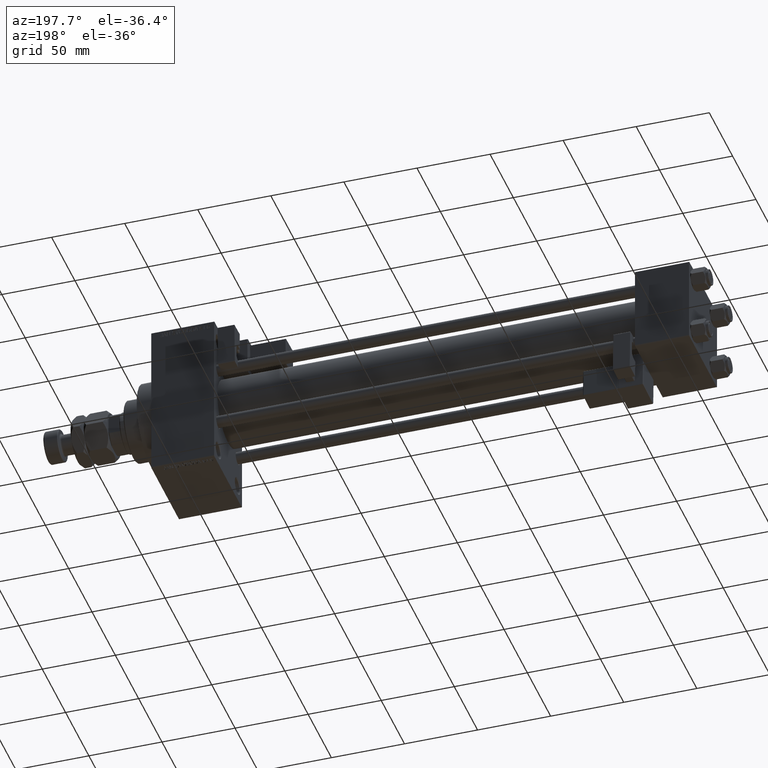
[diagram: clean part render]
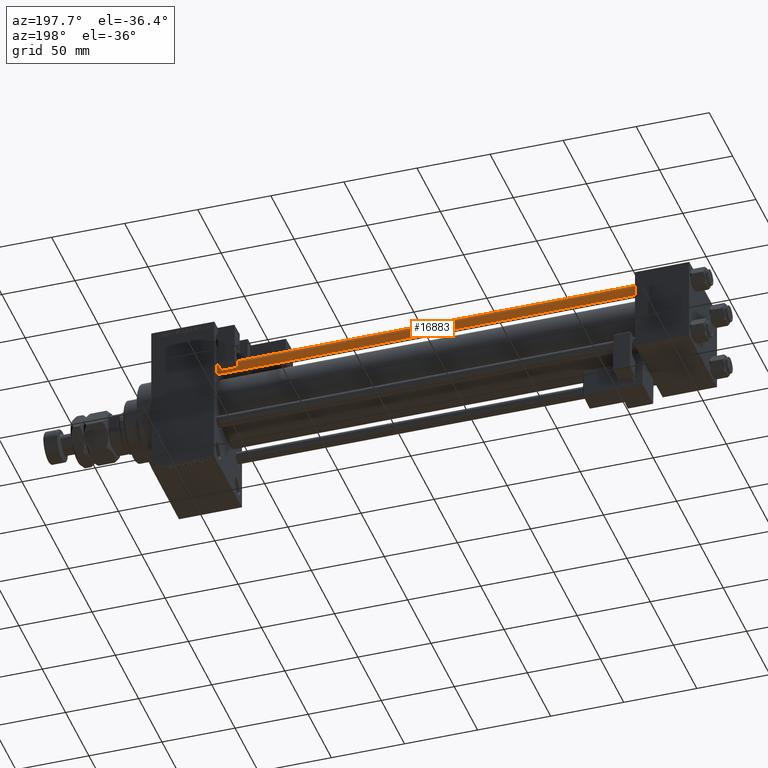
[diagram: same view with one face highlighted and labeled with its STEP entity id]
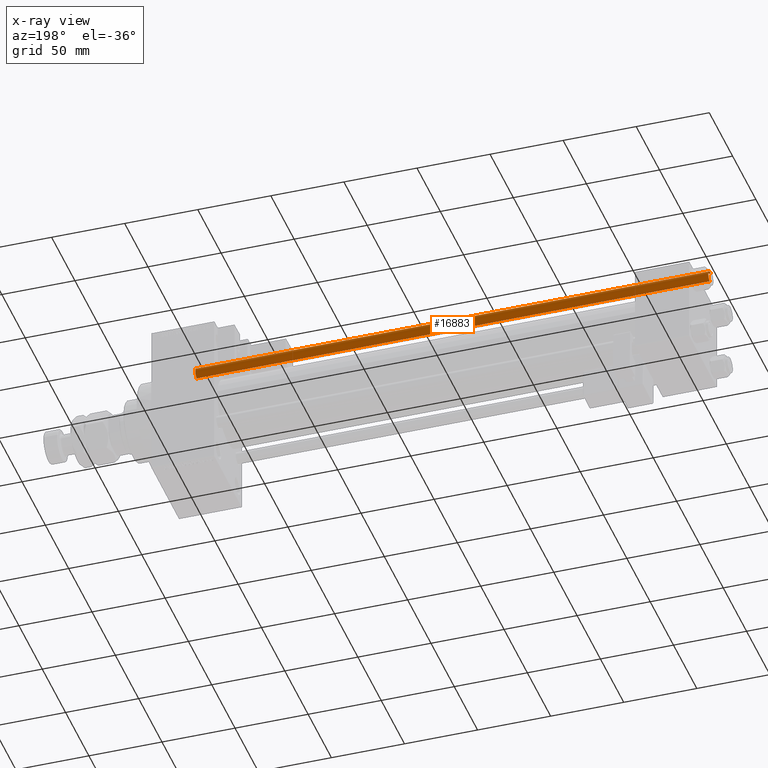
[diagram: x-ray of the same camera — body ghosted, the highlighted face saturated]
A machine part, auxiliary view. The second image highlights one B-rep face of the part: STEP entity #16883.
The next image is the same camera in x-ray: the body ghosted, the highlighted face saturated — about 0% of this face is hidden behind the body in this view.
In plain terms, the highlighted cylindrical surface (edge-blend (fillet) strip) has radius 4 mm, axis along (-1, -0, 0).
Its self-contained STEP definition (entity closure, byte-faithful):
#1614 = CIRCLE ( 'NONE', #5760, 4.000000000000000000 ) ;
#2182 = DIRECTION ( 'NONE',  ( -0.000000000000000000, -0.000000000000000000, -1.000000000000000000 ) ) ;
#2555 = CARTESIAN_POINT ( 'NONE',  ( 4.000000000000000000, 4.898587196589412829E-16, 0.5000000000000004441 ) ) ;
#5317 = VECTOR ( 'NONE', #23848, 1000.000000000000000 ) ;
#5760 = AXIS2_PLACEMENT_3D ( 'NONE', #50481, #41892, #30432 ) ;
#8071 = ORIENTED_EDGE ( 'NONE', *, *, #18068, .F. ) ;
#8273 = EDGE_CURVE ( 'NONE', #25211, #12315, #50476, .T. ) ;
#9741 = CARTESIAN_POINT ( 'NONE',  ( 4.000000000000000000, 4.898587196589412829E-16, 351.5000000000000000 ) ) ;
#10573 = VERTEX_POINT ( 'NONE', #33186 ) ;
#11441 = AXIS2_PLACEMENT_3D ( 'NONE', #14180, #45895, #50313 ) ;
#12315 = VERTEX_POINT ( 'NONE', #20300 ) ;
#13478 = FACE_OUTER_BOUND ( 'NONE', #13866, .T. ) ;
#13866 = EDGE_LOOP ( 'NONE', ( #33752, #17619, #35514, #8071 ) ) ;
#14180 = CARTESIAN_POINT ( 'NONE',  ( 0.000000000000000000, 0.000000000000000000, 0.5000000000000004441 ) ) ;
#16062 = CARTESIAN_POINT ( 'NONE',  ( -4.000000000000000000, 0.000000000000000000, 352.0000000000000000 ) ) ;
#16883 = ADVANCED_FACE ( 'NONE', ( #13478 ), #21024, .T. ) ;
#17619 = ORIENTED_EDGE ( 'NONE', *, *, #27419, .T. ) ;
#18068 = EDGE_CURVE ( 'NONE', #10573, #12315, #51156, .T. ) ;
#20300 = CARTESIAN_POINT ( 'NONE',  ( -4.000000000000000000, 0.000000000000000000, 0.5000000000000004441 ) ) ;
#21024 = CYLINDRICAL_SURFACE ( 'NONE', #48416, 4.000000000000000000 ) ;
#23848 = DIRECTION ( 'NONE',  ( -0.000000000000000000, -0.000000000000000000, -1.000000000000000000 ) ) ;
#25211 = VERTEX_POINT ( 'NONE', #2555 ) ;
#25575 = LINE ( 'NONE', #37784, #39196 ) ;
#27419 = EDGE_CURVE ( 'NONE', #31552, #25211, #25575, .T. ) ;
#30432 = DIRECTION ( 'NONE',  ( 1.000000000000000000, 0.000000000000000000, 0.000000000000000000 ) ) ;
#31552 = VERTEX_POINT ( 'NONE', #9741 ) ;
#33186 = CARTESIAN_POINT ( 'NONE',  ( -4.000000000000000000, 0.000000000000000000, 351.5000000000000000 ) ) ;
#33752 = ORIENTED_EDGE ( 'NONE', *, *, #50220, .T. ) ;
#35514 = ORIENTED_EDGE ( 'NONE', *, *, #8273, .T. ) ;
#37388 = DIRECTION ( 'NONE',  ( -1.000000000000000000, 0.000000000000000000, 0.000000000000000000 ) ) ;
#37784 = CARTESIAN_POINT ( 'NONE',  ( 4.000000000000000000, 4.898587196589412829E-16, 352.0000000000000000 ) ) ;
#39196 = VECTOR ( 'NONE', #2182, 1000.000000000000000 ) ;
#41035 = DIRECTION ( 'NONE',  ( -0.000000000000000000, -0.000000000000000000, -1.000000000000000000 ) ) ;
#41892 = DIRECTION ( 'NONE',  ( 0.000000000000000000, 0.000000000000000000, -1.000000000000000000 ) ) ;
#45187 = CARTESIAN_POINT ( 'NONE',  ( 0.000000000000000000, 0.000000000000000000, 352.0000000000000000 ) ) ;
#45895 = DIRECTION ( 'NONE',  ( -0.000000000000000000, -0.000000000000000000, 1.000000000000000000 ) ) ;
#48416 = AXIS2_PLACEMENT_3D ( 'NONE', #45187, #41035, #37388 ) ;
#50220 = EDGE_CURVE ( 'NONE', #10573, #31552, #1614, .T. ) ;
#50313 = DIRECTION ( 'NONE',  ( 1.000000000000000000, 0.000000000000000000, 0.000000000000000000 ) ) ;
#50476 = CIRCLE ( 'NONE', #11441, 4.000000000000000000 ) ;
#50481 = CARTESIAN_POINT ( 'NONE',  ( 0.000000000000000000, 0.000000000000000000, 351.5000000000000000 ) ) ;
#51156 = LINE ( 'NONE', #16062, #5317 ) ;